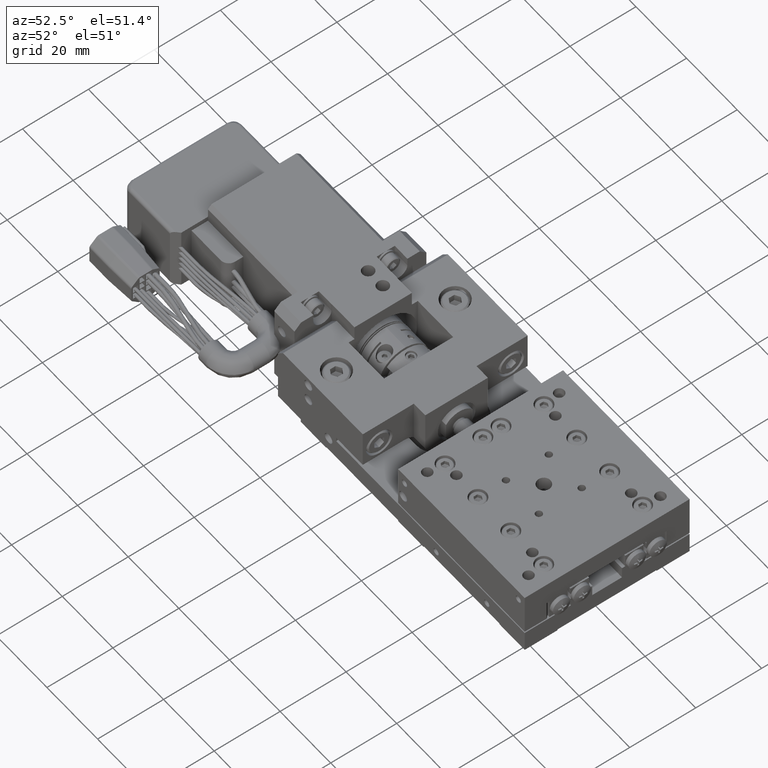
[diagram: clean part render]
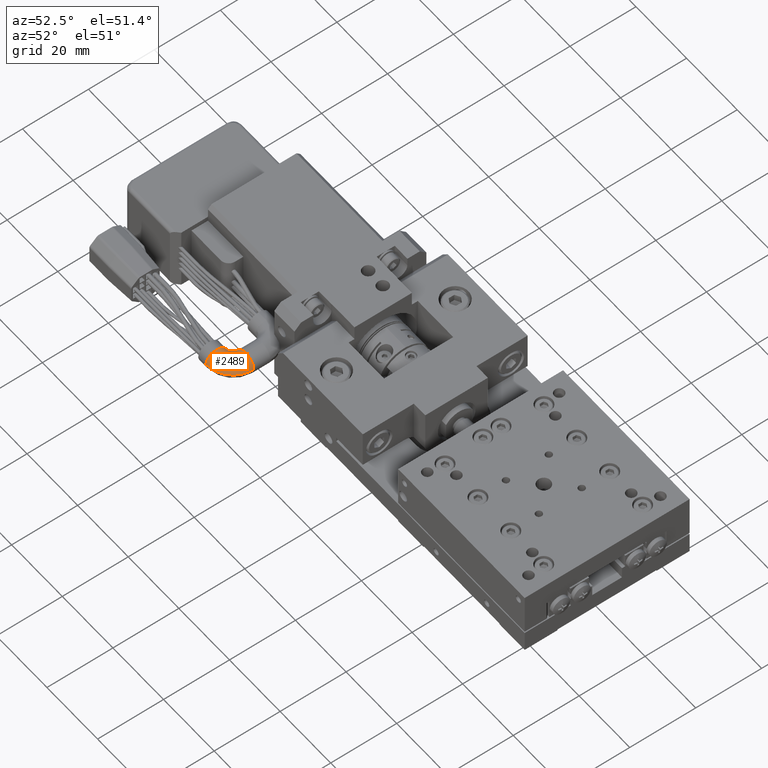
[diagram: same view with one face highlighted and labeled with its STEP entity id]
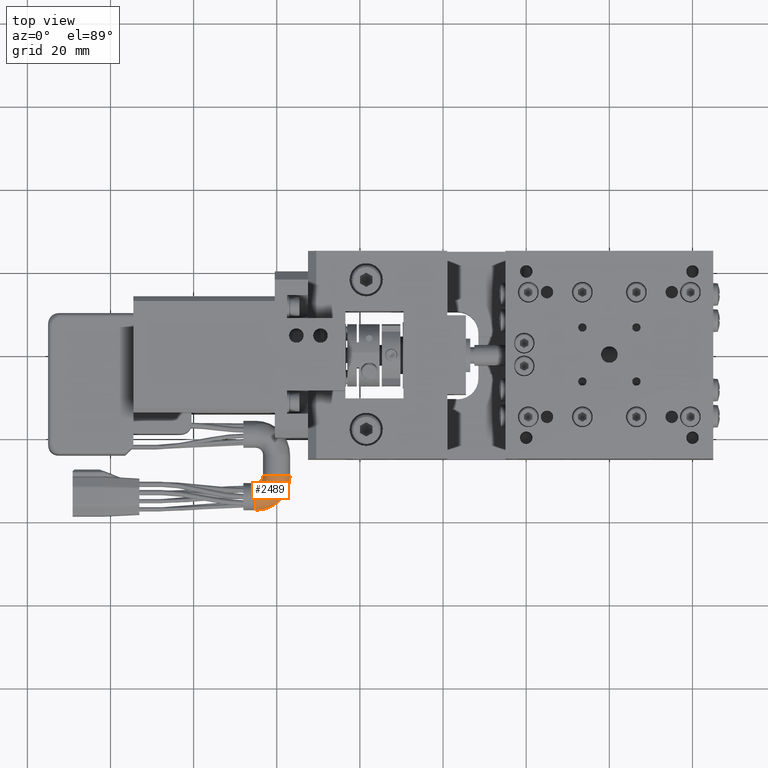
[diagram: same view with one face highlighted and labeled with its STEP entity id]
A machine part, auxiliary view. The second image highlights one B-rep face of the part: STEP entity #2489.
A second angle (top view) of the same face is appended — the face is thin or edge-on in the first view.
In plain terms, the highlighted face is a freeform B-spline surface patch.
Its self-contained STEP definition (entity closure, byte-faithful):
#2489=ADVANCED_FACE('',(#25144),#25143,.T.);
#25143=( BOUNDED_SURFACE() B_SPLINE_SURFACE( 2,2,((#41174,#41175,#41176,#41177,#41178),(#41179,#41180,#41181,#41182,#41183),(#41184,#41185,#41186,#41187,#41188),(#41189,#41190,#41191,#41192,#41193),(#41194,#41195,#41196,#41197,#41198)), .UNSPECIFIED.,.F.,.F.,.F.) B_SPLINE_SURFACE_WITH_KNOTS((3,2,3),(3,2,3),(-3.14159265359E+000,-1.57079632679E+000,8.88178419700E-016),(2.35619449019E+000,3.14159265359E+000,3.92699081699E+000), .UNSPECIFIED. ) GEOMETRIC_REPRESENTATION_ITEM() RATIONAL_B_SPLINE_SURFACE(((8.53553390593E-001,8.53553390593E-001,1.00000000000E+000,8.53553390593E-001,8.53553390593E-001),(6.03553390593E-001,6.03553390593E-001,7.07106781187E-001,6.03553390593E-001,6.03553390593E-001),(8.53553390593E-001,8.53553390593E-001,1.00000000000E+000,8.53553390593E-001,8.53553390593E-001),(6.03553390593E-001,6.03553390593E-001,7.07106781187E-001,6.03553390593E-001,6.03553390593E-001),(8.53553390593E-001,8.53553390593E-001,1.00000000000E+000,8.53553390593E-001,8.53553390593E-001))) REPRESENTATION_ITEM('') SURFACE() );
#25144=FACE_OUTER_BOUND('',#41199,.T.);
#41174=CARTESIAN_POINT('',(-8.50500087782E+001,-3.07499997541E+001,9.99890464088E+000));
#41175=CARTESIAN_POINT('',(-8.43251350441E+001,-3.07499999610E+001,9.99890464088E+000));
#41176=CARTESIAN_POINT('',(-8.38125717648E+001,-3.02374369747E+001,9.99892294426E+000));
#41177=CARTESIAN_POINT('',(-8.33000084856E+001,-2.97248739884E+001,9.99894124763E+000));
#41178=CARTESIAN_POINT('',(-8.33000082787E+001,-2.90000002548E+001,9.99896713251E+000));
#41179=CARTESIAN_POINT('',(-8.50500087783E+001,-3.07501158099E+001,1.32489046388E+001));
#41180=CARTESIAN_POINT('',(-8.43251350441E+001,-3.07501160169E+001,1.32489046388E+001));
#41181=CARTESIAN_POINT('',(-8.38125717649E+001,-3.02375530306E+001,1.32489229422E+001));
#41182=CARTESIAN_POINT('',(-8.33000084856E+001,-2.97249900443E+001,1.32489412456E+001));
#41183=CARTESIAN_POINT('',(-8.33000082787E+001,-2.90001163106E+001,1.32489671304E+001));
#41184=CARTESIAN_POINT('',(-8.50500097060E+001,-3.40001158079E+001,1.32487885829E+001));
#41185=CARTESIAN_POINT('',(-8.29789418942E+001,-3.40001163991E+001,1.32487885829E+001));
#41186=CARTESIAN_POINT('',(-8.15144753820E+001,-3.25356507240E+001,1.32488408783E+001));
#41187=CARTESIAN_POINT('',(-8.00500088699E+001,-3.10711850490E+001,1.32488931736E+001));
#41188=CARTESIAN_POINT('',(-8.00500082787E+001,-2.90001172384E+001,1.32489671304E+001));
#41189=CARTESIAN_POINT('',(-8.50500106338E+001,-3.72501158058E+001,1.32486725271E+001));
#41190=CARTESIAN_POINT('',(-8.16327487442E+001,-3.72501167813E+001,1.32486725271E+001));
#41191=CARTESIAN_POINT('',(-7.92163789992E+001,-3.48337484175E+001,1.32487588144E+001));
#41192=CARTESIAN_POINT('',(-7.68000092542E+001,-3.24173800536E+001,1.32488451017E+001));
#41193=CARTESIAN_POINT('',(-7.68000082787E+001,-2.90001181662E+001,1.32489671304E+001));
#41194=CARTESIAN_POINT('',(-8.50500106338E+001,-3.72499997499E+001,9.99867252912E+000));
#41195=CARTESIAN_POINT('',(-8.16327487442E+001,-3.72500007254E+001,9.99867252912E+000));
#41196=CARTESIAN_POINT('',(-7.92163789992E+001,-3.48336323616E+001,9.99875881646E+000));
#41197=CARTESIAN_POINT('',(-7.68000092542E+001,-3.24172639977E+001,9.99884510379E+000));
#41198=CARTESIAN_POINT('',(-7.68000082787E+001,-2.90000021103E+001,9.99896713251E+000));
#41199=EDGE_LOOP('',(#51866,#51867,#51868,#51869,#51870));
#51866=ORIENTED_EDGE('',*,*,#57192,.T.);
#51867=ORIENTED_EDGE('',*,*,#57193,.T.);
#51868=ORIENTED_EDGE('',*,*,#57194,.F.);
#51869=ORIENTED_EDGE('',*,*,#57187,.F.);
#51870=ORIENTED_EDGE('',*,*,#57195,.T.);
#57187=EDGE_CURVE('',#92200,#92207,#92208,.T.);
#57192=EDGE_CURVE('',#92241,#92242,#92243,.T.);
#57193=EDGE_CURVE('',#92242,#92249,#92250,.T.);
#57194=EDGE_CURVE('',#92207,#92249,#92256,.T.);
#57195=EDGE_CURVE('',#92200,#92241,#92262,.T.);
#92200=VERTEX_POINT('',#114450);
#92207=VERTEX_POINT('',#114455);
#92208=CIRCLE('',#114459,3.25000000000E+000);
#92241=VERTEX_POINT('',#114479);
#92242=VERTEX_POINT('',#114480);
#92243=CIRCLE('',#114484,3.25000000000E+000);
#92249=VERTEX_POINT('',#114485);
#92250=CIRCLE('',#114489,3.25000000000E+000);
#92256=(BOUNDED_CURVE() B_SPLINE_CURVE(2,(#114490,#114491,#114492,#114493,#114494),.UNSPECIFIED.,.F.,.F.) B_SPLINE_CURVE_WITH_KNOTS((3,2,3),(2.35619447459E+000,3.14159265359E+000,3.92699083259E+000),.UNSPECIFIED.) CURVE() GEOMETRIC_REPRESENTATION_ITEM() RATIONAL_B_SPLINE_CURVE((8.53553390593E-001,8.53553387684E-001,1.00000000000E+000,8.53553387684E-001,8.53553390593E-001)) REPRESENTATION_ITEM('') );
#92262=(BOUNDED_CURVE() B_SPLINE_CURVE(2,(#114495,#114496,#114497,#114498,#114499),.UNSPECIFIED.,.F.,.F.) B_SPLINE_CURVE_WITH_KNOTS((3,2,3),(2.35619449019E+000,3.14159265359E+000,3.92699081699E+000),.UNSPECIFIED.) CURVE() GEOMETRIC_REPRESENTATION_ITEM() RATIONAL_B_SPLINE_CURVE((8.53553390593E-001,8.53553390593E-001,1.00000000000E+000,8.53553390593E-001,8.53553390593E-001)) REPRESENTATION_ITEM('') );
#114450=CARTESIAN_POINT('',(-8.50500106338E+001,-3.72499997499E+001,9.99867261943E+000));
#114455=CARTESIAN_POINT('',(-8.50500087782E+001,-3.07499997541E+001,9.99890462904E+000));
#114456=CARTESIAN_POINT('',(-8.50500097060E+001,-3.39999997520E+001,9.99878858500E+000));
#114457=DIRECTION('',(-1.00000000000E+000,2.85470934326E-007,0.00000000000E+000));
#114458=DIRECTION('',(1.01940247477E-011,3.57095014656E-005,-9.99999999362E-001));
#114459=AXIS2_PLACEMENT_3D('',#114456,#114457,#114458);
#114479=CARTESIAN_POINT('',(-7.68000082787E+001,-2.90000021103E+001,9.99896765695E+000));
#114480=CARTESIAN_POINT('',(-8.00500082782E+001,-2.90001172384E+001,1.32489671304E+001));
#114481=CARTESIAN_POINT('',(-8.00500082787E+001,-2.90000011825E+001,9.99896713251E+000));
#114482=DIRECTION('',(-2.85470934205E-007,-9.99999999362E-001,-3.57095014655E-005));
#114483=DIRECTION('',(1.01939022830E-011,3.57095014655E-005,-9.99999999362E-001));
#114484=AXIS2_PLACEMENT_3D('',#114481,#114482,#114483);
#114485=CARTESIAN_POINT('',(-8.33000082787E+001,-2.90000002548E+001,9.99896712067E+000));
#114486=CARTESIAN_POINT('',(-8.00500082787E+001,-2.90000011825E+001,9.99896713251E+000));
#114487=DIRECTION('',(-2.85470934205E-007,-9.99999999362E-001,-3.57095014655E-005));
#114488=DIRECTION('',(1.01939022830E-011,3.57095014655E-005,-9.99999999362E-001));
#114489=AXIS2_PLACEMENT_3D('',#114486,#114487,#114488);
#114490=CARTESIAN_POINT('',(-8.50500088070E+001,-3.07499997541E+001,9.99890464088E+000));
#114491=CARTESIAN_POINT('',(-8.43251350560E+001,-3.07499999729E+001,9.99890464088E+000));
#114492=CARTESIAN_POINT('',(-8.38125717648E+001,-3.02374369747E+001,9.99892294426E+000));
#114493=CARTESIAN_POINT('',(-8.33000084737E+001,-2.97248739765E+001,9.99894124763E+000));
#114494=CARTESIAN_POINT('',(-8.33000082787E+001,-2.90000002259E+001,9.99896713251E+000));
#114495=CARTESIAN_POINT('',(-8.50500106338E+001,-3.72499997499E+001,9.99867252912E+000));
#114496=CARTESIAN_POINT('',(-8.16327487442E+001,-3.72500007254E+001,9.99867252912E+000));
#114497=CARTESIAN_POINT('',(-7.92163789992E+001,-3.48336323616E+001,9.99875881646E+000));
#114498=CARTESIAN_POINT('',(-7.68000092542E+001,-3.24172639977E+001,9.99884510379E+000));
#114499=CARTESIAN_POINT('',(-7.68000082787E+001,-2.90000021103E+001,9.99896713251E+000));